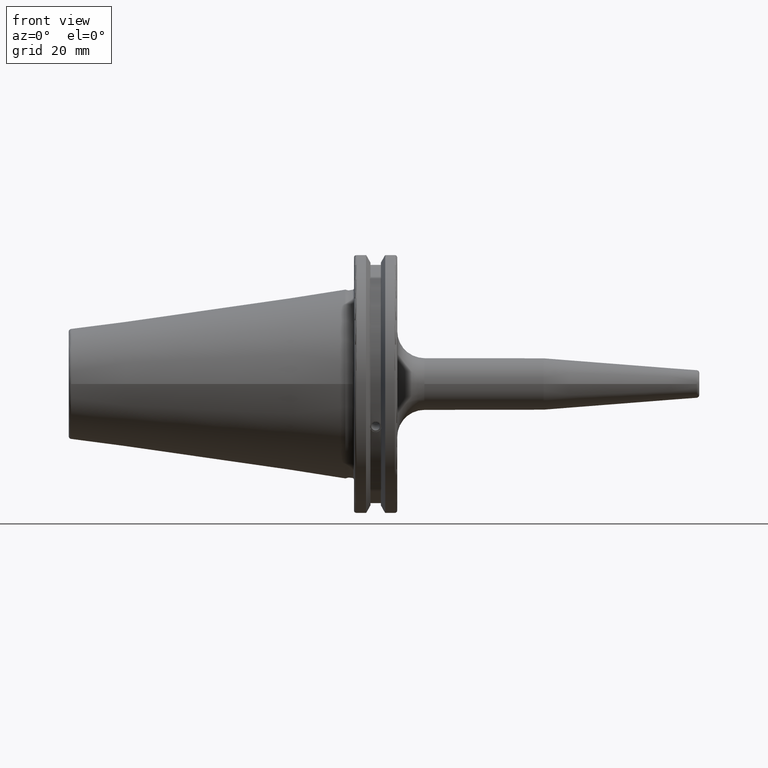
[diagram: clean part render]
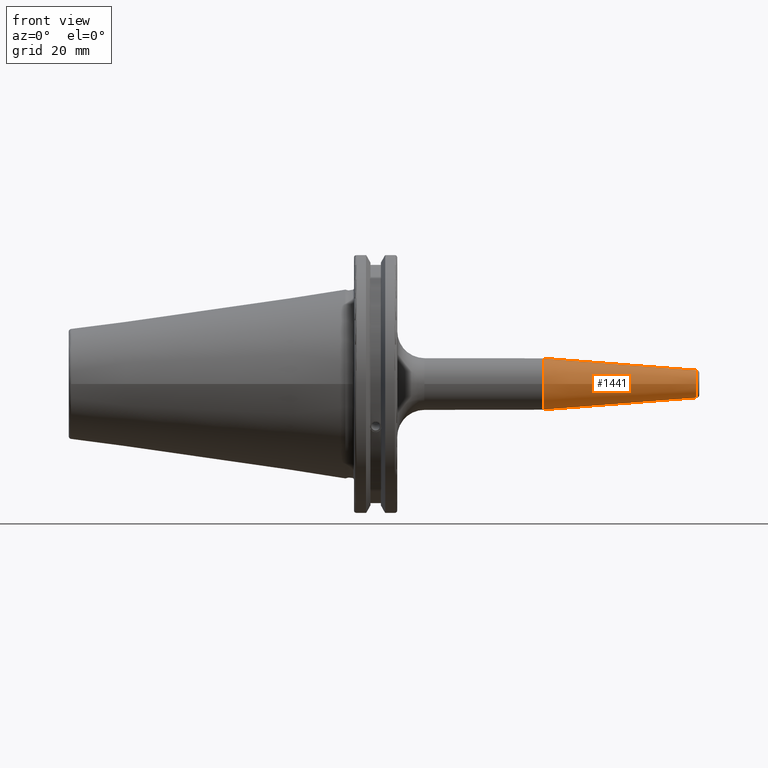
[diagram: same view with one face highlighted and labeled with its STEP entity id]
A machine part, front view. The second image highlights one B-rep face of the part: STEP entity #1441.
In plain terms, the highlighted conical surface has half-angle 4.5 deg.
Its self-contained STEP definition (entity closure, byte-faithful):
#151=LINE('',#2135,#245);
#245=VECTOR('',#1722,7.25);
#339=CONICAL_SURFACE('',#1553,7.25,0.0785398163397448);
#355=FACE_OUTER_BOUND('',#440,.T.);
#440=EDGE_LOOP('',(#991,#992,#993,#994,#995));
#544=CIRCLE('',#1551,5.07252684207491);
#545=CIRCLE('',#1552,5.07252684207491);
#546=CIRCLE('',#1554,9.5);
#616=VERTEX_POINT('',#2128);
#617=VERTEX_POINT('',#2130);
#618=VERTEX_POINT('',#2134);
#765=EDGE_CURVE('',#616,#617,#544,.T.);
#766=EDGE_CURVE('',#617,#616,#545,.T.);
#767=EDGE_CURVE('',#617,#618,#151,.T.);
#768=EDGE_CURVE('',#618,#618,#546,.T.);
#991=ORIENTED_EDGE('',*,*,#766,.F.);
#992=ORIENTED_EDGE('',*,*,#767,.T.);
#993=ORIENTED_EDGE('',*,*,#768,.T.);
#994=ORIENTED_EDGE('',*,*,#767,.F.);
#995=ORIENTED_EDGE('',*,*,#765,.F.);
#1441=ADVANCED_FACE('',(#355),#339,.T.);
#1551=AXIS2_PLACEMENT_3D('',#2131,#1716,#1717);
#1552=AXIS2_PLACEMENT_3D('',#2132,#1718,#1719);
#1553=AXIS2_PLACEMENT_3D('',#2133,#1720,#1721);
#1554=AXIS2_PLACEMENT_3D('',#2136,#1723,#1724);
#1716=DIRECTION('center_axis',(1.,0.,0.));
#1717=DIRECTION('ref_axis',(0.,-1.,3.06161699786838E-17));
#1718=DIRECTION('center_axis',(1.,0.,0.));
#1719=DIRECTION('ref_axis',(0.,-1.,3.06161699786838E-17));
#1720=DIRECTION('center_axis',(-1.,0.,0.));
#1721=DIRECTION('ref_axis',(0.,1.,0.));
#1722=DIRECTION('',(-0.996917333733128,-0.078459095727845,-9.60846804471011E-18));
#1723=DIRECTION('center_axis',(1.,0.,0.));
#1724=DIRECTION('ref_axis',(0.,0.,-1.));
#2128=CARTESIAN_POINT('',(129.078459095728,-6.21205376073607E-16,5.07252684207491));
#2130=CARTESIAN_POINT('',(129.078459095728,-5.07252684207491,-6.21205376073607E-16));
#2131=CARTESIAN_POINT('Origin',(129.078459095728,0.,-7.7650672009201E-16));
#2132=CARTESIAN_POINT('Origin',(129.078459095728,0.,-7.7650672009201E-16));
#2133=CARTESIAN_POINT('Origin',(101.411039343607,0.,0.));
#2134=CARTESIAN_POINT('',(72.8220786872138,-9.5,-1.16341445918999E-15));
#2135=CARTESIAN_POINT('',(101.411039343607,-7.25,-8.87868929381831E-16));
#2136=CARTESIAN_POINT('Origin',(72.8220786872138,0.,0.));